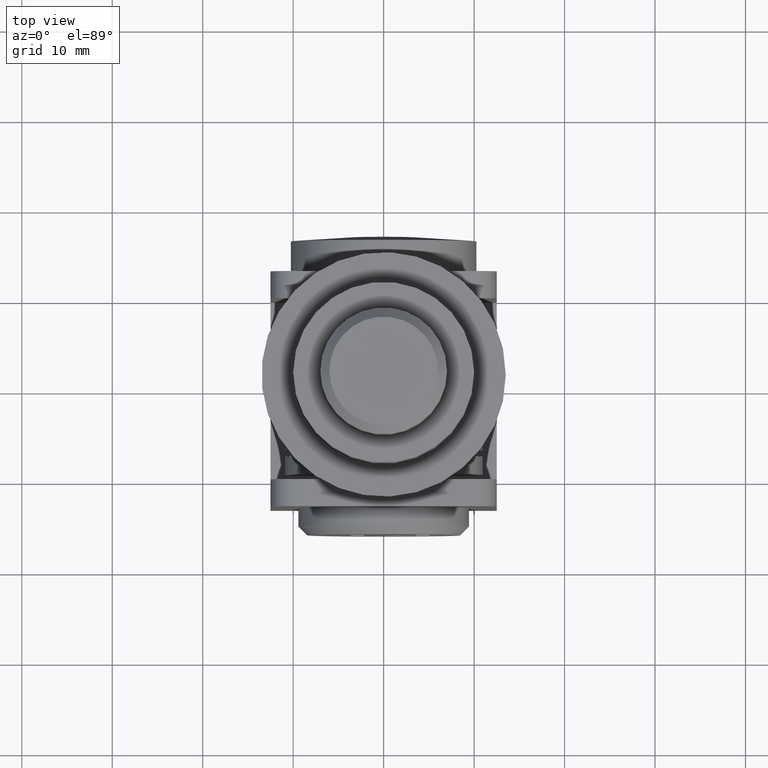
[diagram: clean part render]
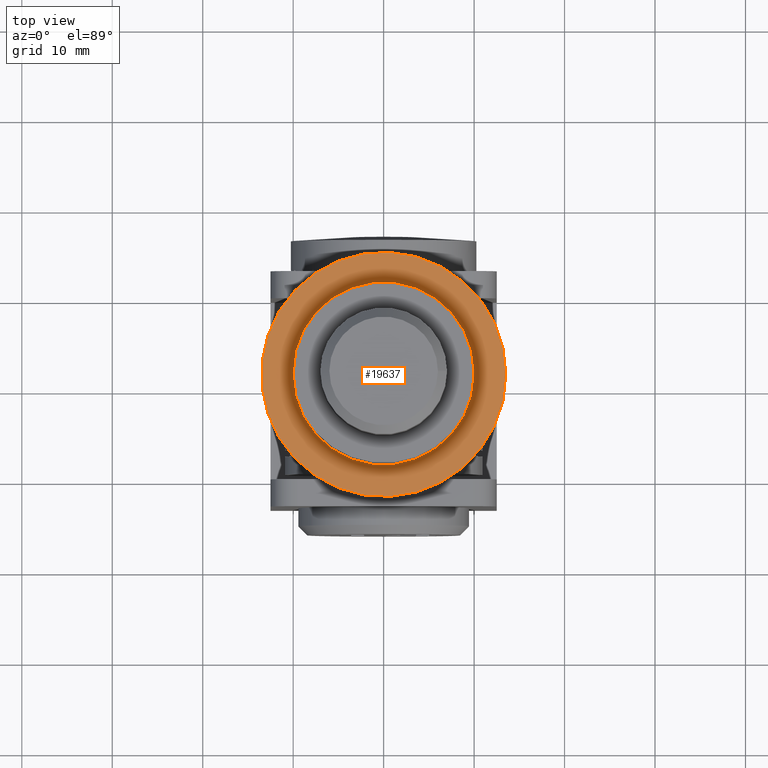
[diagram: same view with one face highlighted and labeled with its STEP entity id]
A machine part, top view. The second image highlights one B-rep face of the part: STEP entity #19637.
In plain terms, the highlighted planar face has unit normal (0, 0, -1).
Its self-contained STEP definition (entity closure, byte-faithful):
#523 = CARTESIAN_POINT ( 'NONE',  ( 0.000000000000000000, 0.000000000000000000, -4.500000000000003553 ) ) ;
#686 = VERTEX_POINT ( 'NONE', #20051 ) ;
#1201 = DIRECTION ( 'NONE',  ( -1.000000000000000000, 0.000000000000000000, -0.000000000000000000 ) ) ;
#1584 = FACE_BOUND ( 'NONE', #10160, .T. ) ;
#3205 = AXIS2_PLACEMENT_3D ( 'NONE', #9284, #20586, #10783 ) ;
#4770 = ORIENTED_EDGE ( 'NONE', *, *, #12491, .T. ) ;
#4904 = EDGE_CURVE ( 'NONE', #10419, #10419, #13213, .T. ) ;
#5222 = CIRCLE ( 'NONE', #15822, 13.49999999999999822 ) ;
#5478 = DIRECTION ( 'NONE',  ( -0.000000000000000000, -0.000000000000000000, 1.000000000000000000 ) ) ;
#6224 = EDGE_LOOP ( 'NONE', ( #4770 ) ) ;
#9284 = CARTESIAN_POINT ( 'NONE',  ( 0.000000000000000000, 0.000000000000000000, -4.500000000000003553 ) ) ;
#9711 = CARTESIAN_POINT ( 'NONE',  ( 9.999999999999998224, 0.000000000000000000, -4.500000000000003553 ) ) ;
#10129 = AXIS2_PLACEMENT_3D ( 'NONE', #19126, #12498, #1201 ) ;
#10160 = EDGE_LOOP ( 'NONE', ( #15776 ) ) ;
#10419 = VERTEX_POINT ( 'NONE', #9711 ) ;
#10783 = DIRECTION ( 'NONE',  ( 1.000000000000000000, 0.000000000000000000, 0.000000000000000000 ) ) ;
#11518 = FACE_OUTER_BOUND ( 'NONE', #6224, .T. ) ;
#12349 = PLANE ( 'NONE',  #10129 ) ;
#12491 = EDGE_CURVE ( 'NONE', #686, #686, #5222, .T. ) ;
#12498 = DIRECTION ( 'NONE',  ( 0.000000000000000000, 0.000000000000000000, -1.000000000000000000 ) ) ;
#13213 = CIRCLE ( 'NONE', #3205, 9.999999999999998224 ) ;
#15776 = ORIENTED_EDGE ( 'NONE', *, *, #4904, .F. ) ;
#15822 = AXIS2_PLACEMENT_3D ( 'NONE', #523, #5478, #20180 ) ;
#19126 = CARTESIAN_POINT ( 'NONE',  ( 0.000000000000000000, 9.999999999999998224, -4.500000000000003553 ) ) ;
#19637 = ADVANCED_FACE ( 'NONE', ( #1584, #11518 ), #12349, .F. ) ;
#20051 = CARTESIAN_POINT ( 'NONE',  ( 13.49999999999999822, 0.000000000000000000, -4.500000000000003553 ) ) ;
#20180 = DIRECTION ( 'NONE',  ( 1.000000000000000000, 0.000000000000000000, 0.000000000000000000 ) ) ;
#20586 = DIRECTION ( 'NONE',  ( -0.000000000000000000, -0.000000000000000000, 1.000000000000000000 ) ) ;